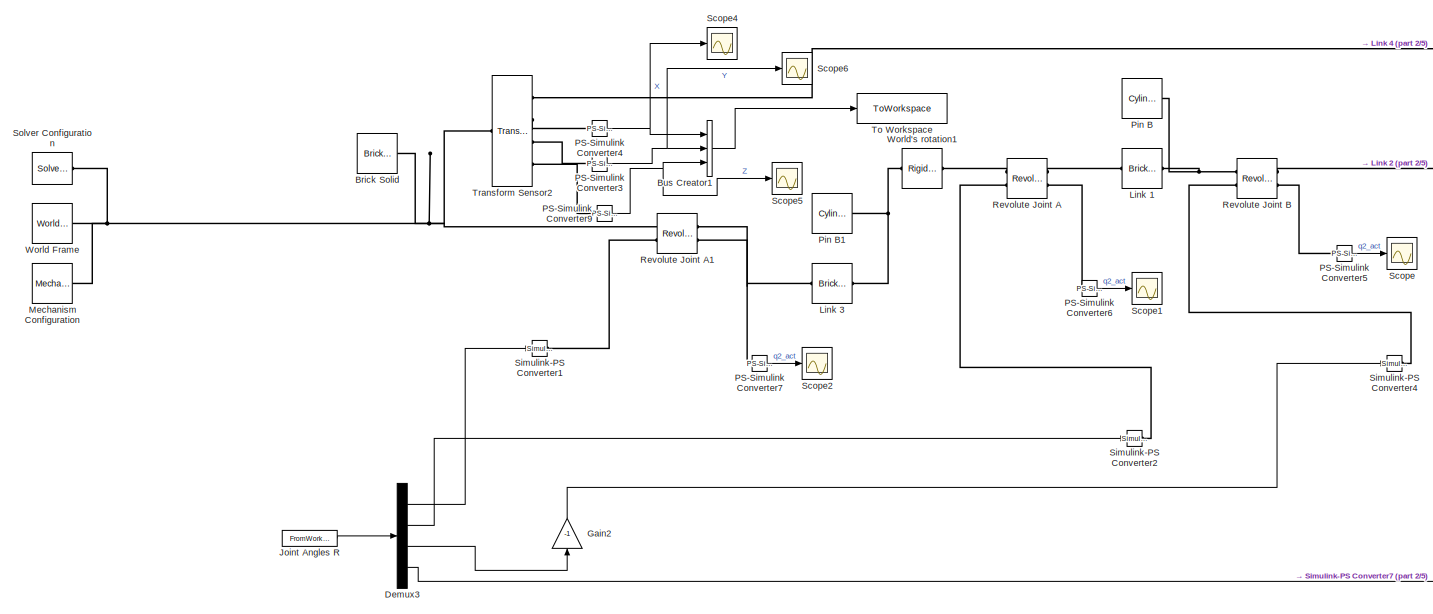
[diagram: root canvas - part 1/5, top center region]
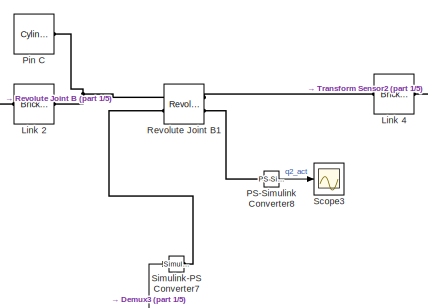
[diagram: root canvas - part 2/5, top center region]
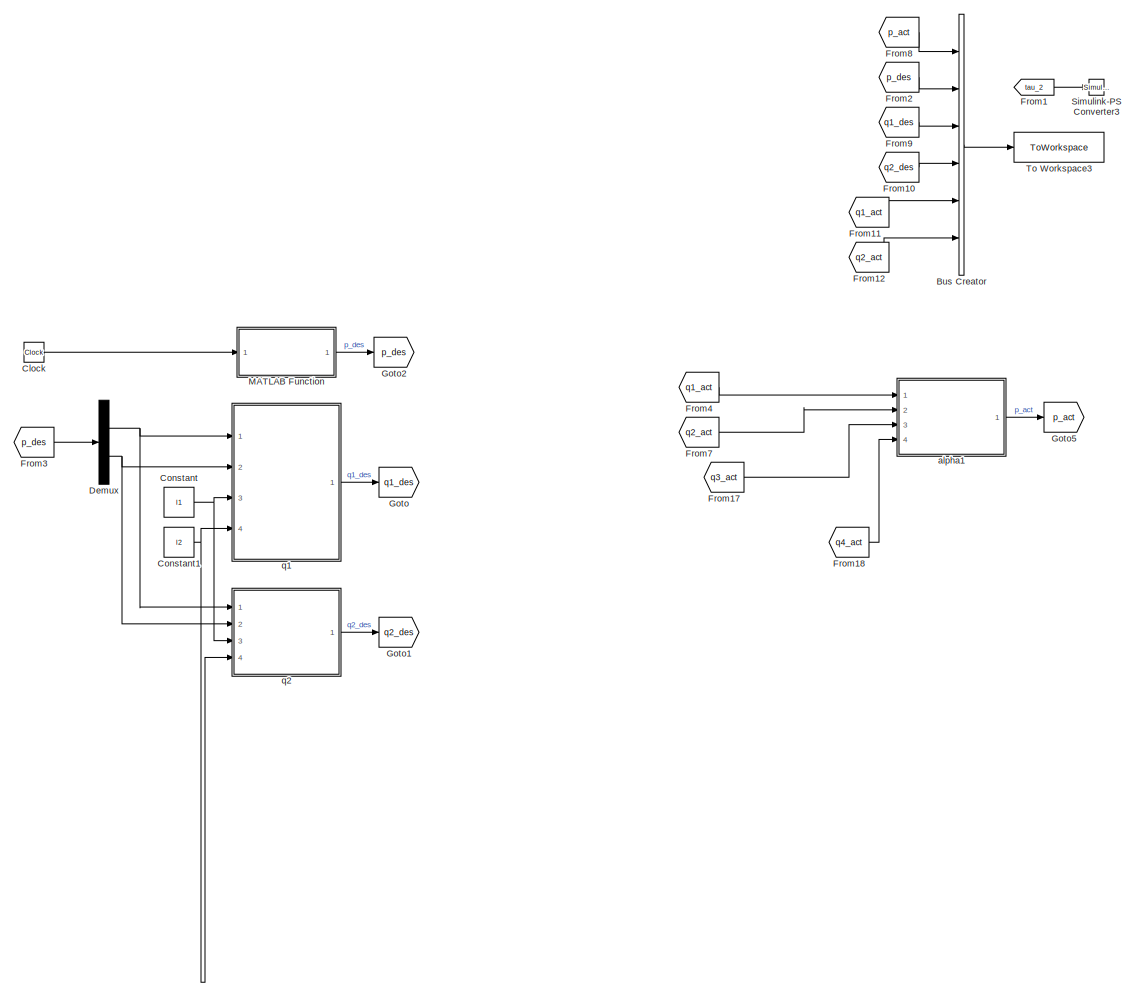
[diagram: root canvas - part 3/5, bottom left region]
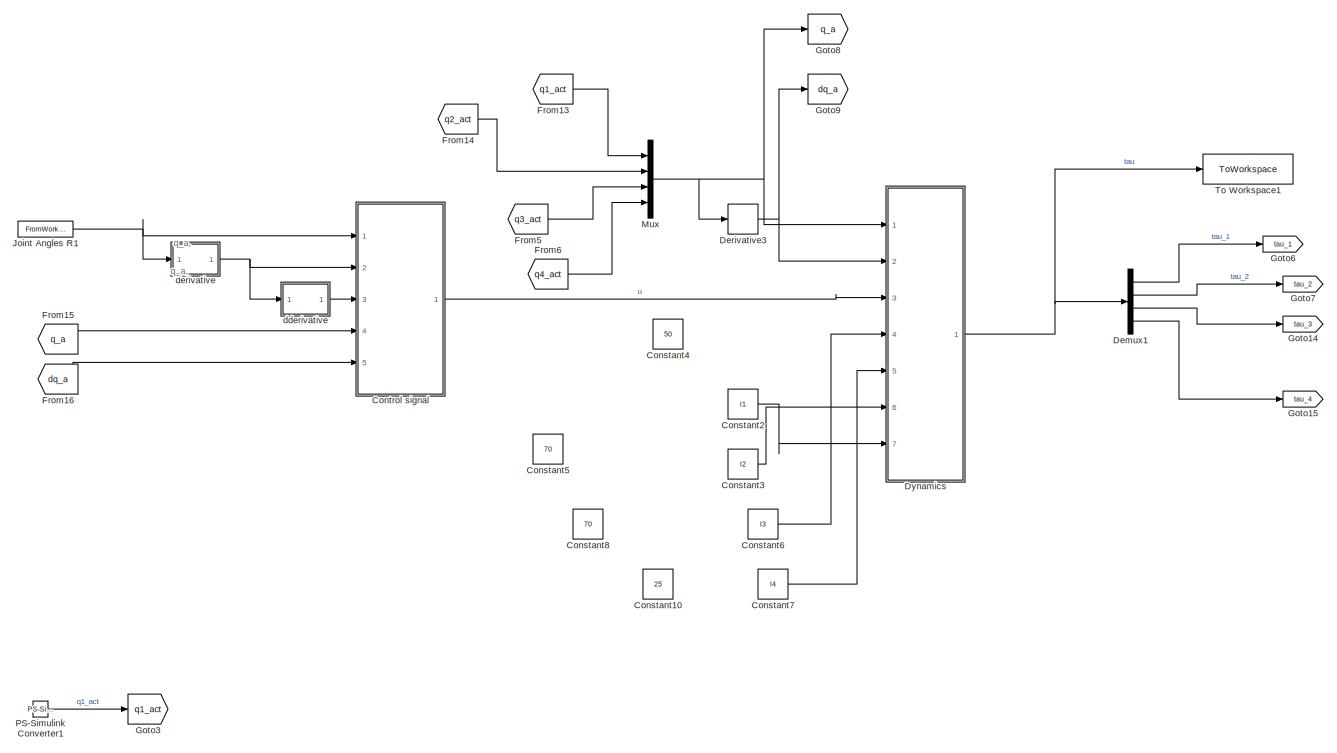
[diagram: root canvas - part 4/5, central region]
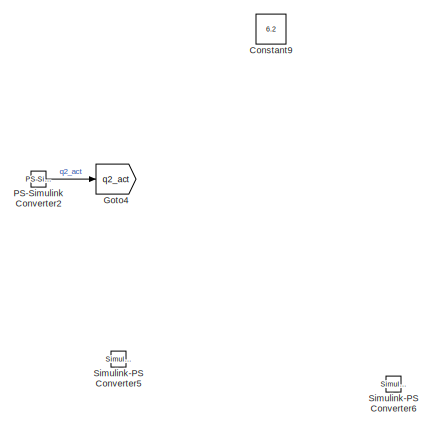
[diagram: root canvas - part 5/5, bottom right region]
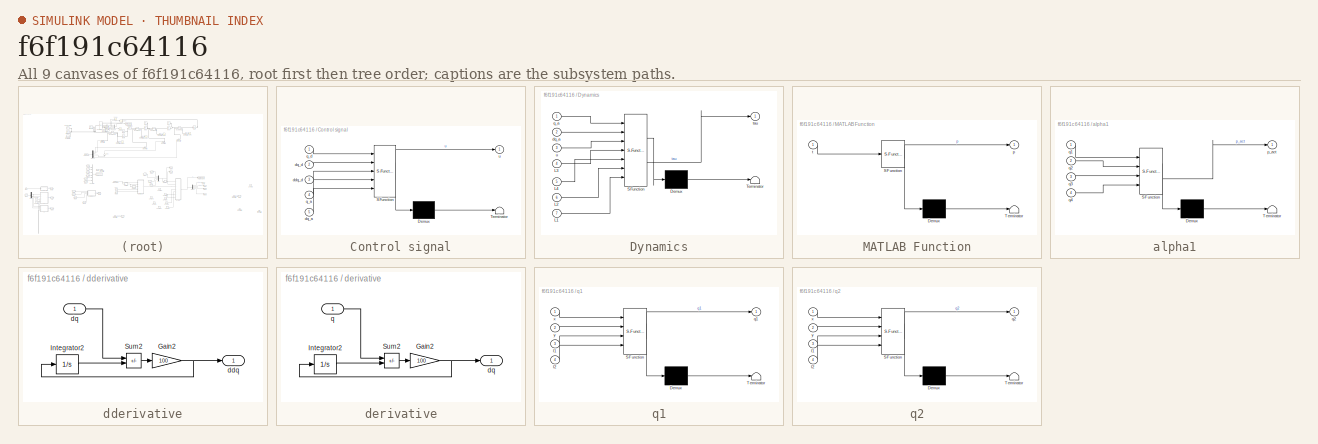
[diagram: thumbnail index - all 9 canvases of the model, root first then tree order]
MODEL slx_f6f191c64116
KIND model
CONFIG AbsTol = auto
CONFIG EnableMultiTasking = off
CONFIG FixedStep = 0.001
CONFIG MaxStep = auto
CONFIG MinStep = 0.005
CONFIG RelTol = 1e-3
CONFIG SampleTimeConstraint = Unconstrained
CONFIG SolverName = VariableStepAuto
CONFIG StartTime = 0.0
CONFIG StopTime = StopTime
BLOCK [Reference] Brick Solid  REF=sm_lib/Body Elements/Brick Solid
  Ports = [0, 0, 0, 0, 0, 0, 1]
  SourceBlock = sm_lib/Body Elements/Brick Solid
  SourceProductBaseCode = MS
  SourceType = Brick Solid
BLOCK [BusCreator] Bus Creator
  Commented = on
  DisplayOption = bar
  InheritFromInputs = on
  Inputs = 6
  Ports = [6, 1]
BLOCK [BusCreator] Bus Creator1
  DisplayOption = bar
  InheritFromInputs = on
  Inputs = 3
  Ports = [3, 1]
BLOCK [Clock] Clock
  Commented = on
BLOCK [Constant] Constant
  Commented = on
  Value = l1
BLOCK [Constant] Constant1
  Commented = on
  Value = l2
BLOCK [Constant] Constant10
  Commented = on
  Value = 25
BLOCK [Constant] Constant2
  Commented = on
  Value = l1
BLOCK [Constant] Constant3
  Commented = on
  Value = l2
BLOCK [Constant] Constant4
  Commented = on
  Value = 50
BLOCK [Constant] Constant5
  Commented = on
  Value = 70
BLOCK [Constant] Constant6
  Commented = on
  Value = l3
BLOCK [Constant] Constant7
  Commented = on
  Value = l4
BLOCK [Constant] Constant8
  Commented = on
  Value = 70
BLOCK [Constant] Constant9
  Commented = on
  Value = 6.2
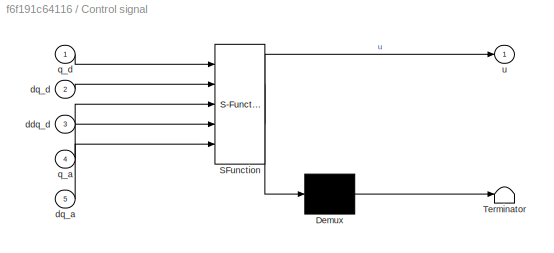
BLOCK [SubSystem] Control signal
  Commented = on
  ErrorFcn = Stateflow.Translate.translate
  PermitHierarchicalResolution = ExplicitOnly
  Ports = [5, 1]
  RequestExecContextInheritance = off
  SFBlockType = MATLAB Function
  TreatAsAtomicUnit = on
BLOCK [Demux] Control signal/ Demux 
  Outputs = 1
  Ports = [1, 1]
BLOCK [S-Function] Control signal/ SFunction 
  EnableBusSupport = on
  FunctionName = sf_sfun
  PortCounts = [5 2]
  Ports = [5, 2]
  SFcnIsStateOwnerBlock = off
  SFunctionDeploymentMode = off
  Tag = Stateflow S-Function 6
BLOCK [Terminator] Control signal/ Terminator 
BLOCK [Inport] Control signal/ddq_d
  Port = 3
BLOCK [Inport] Control signal/dq_a
  Port = 5
BLOCK [Inport] Control signal/dq_d
  Port = 2
BLOCK [Inport] Control signal/q_a
  Port = 4
BLOCK [Inport] Control signal/q_d
BLOCK [Outport] Control signal/u
  VectorParamsAs1DForOutWhenUnconnected = off
BLOCK [Demux] Demux
  Commented = on
  Outputs = 2
  Ports = [1, 2]
BLOCK [Demux] Demux1
  Commented = on
  Ports = [1, 4]
BLOCK [Demux] Demux3
  Ports = [1, 4]
BLOCK [Derivative] Derivative3
  Commented = on
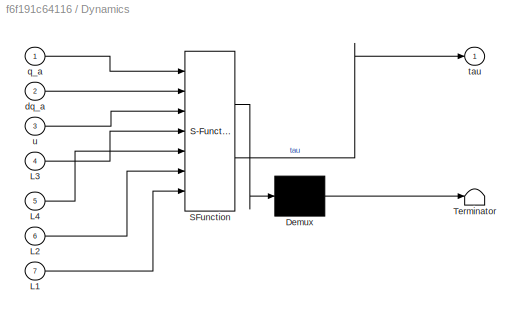
BLOCK [SubSystem] Dynamics
  Commented = on
  ErrorFcn = Stateflow.Translate.translate
  PermitHierarchicalResolution = ExplicitOnly
  Ports = [7, 1]
  RequestExecContextInheritance = off
  SFBlockType = MATLAB Function
  TreatAsAtomicUnit = on
BLOCK [Demux] Dynamics/ Demux 
  Outputs = 1
  Ports = [1, 1]
BLOCK [S-Function] Dynamics/ SFunction 
  EnableBusSupport = on
  FunctionName = sf_sfun
  Parameters = m1,m2,m3,m4
  PortCounts = [7 2]
  Ports = [7, 2]
  SFcnIsStateOwnerBlock = off
  SFunctionDeploymentMode = off
  Tag = Stateflow S-Function 5
BLOCK [Terminator] Dynamics/ Terminator 
BLOCK [Inport] Dynamics/L1
  Port = 7
BLOCK [Inport] Dynamics/L2
  Port = 6
BLOCK [Inport] Dynamics/L3
  Port = 4
BLOCK [Inport] Dynamics/L4
  Port = 5
BLOCK [Inport] Dynamics/dq_a
  Port = 2
BLOCK [Inport] Dynamics/q_a
BLOCK [Outport] Dynamics/tau
  VectorParamsAs1DForOutWhenUnconnected = off
BLOCK [Inport] Dynamics/u
  Port = 3
BLOCK [From] From1
  Commented = on
  GotoTag = tau_2
BLOCK [From] From10
  Commented = on
  GotoTag = q2_des
BLOCK [From] From11
  Commented = on
  GotoTag = q1_act
BLOCK [From] From12
  Commented = on
  GotoTag = q2_act
BLOCK [From] From13
  Commented = on
  GotoTag = q1_act
BLOCK [From] From14
  Commented = on
  GotoTag = q2_act
BLOCK [From] From15
  Commented = on
  GotoTag = q_a
BLOCK [From] From16
  Commented = on
  GotoTag = dq_a
BLOCK [From] From17
  Commented = on
  GotoTag = q3_act
BLOCK [From] From18
  Commented = on
  GotoTag = q4_act
BLOCK [From] From2
  Commented = on
  GotoTag = p_des
BLOCK [From] From3
  Commented = on
  GotoTag = p_des
BLOCK [From] From4
  Commented = on
  GotoTag = q1_act
BLOCK [From] From5
  Commented = on
  GotoTag = q3_act
BLOCK [From] From6
  Commented = on
  GotoTag = q4_act
BLOCK [From] From7
  Commented = on
  GotoTag = q2_act
BLOCK [From] From8
  Commented = on
  GotoTag = p_act
BLOCK [From] From9
  Commented = on
  GotoTag = q1_des
BLOCK [Gain] Gain2
  Gain = -1
  NameLocation = right
BLOCK [Goto] Goto
  Commented = on
  GotoTag = q1_des
BLOCK [Goto] Goto1
  Commented = on
  GotoTag = q2_des
BLOCK [Goto] Goto14
  Commented = on
  GotoTag = tau_3
BLOCK [Goto] Goto15
  Commented = on
  GotoTag = tau_4
BLOCK [Goto] Goto2
  Commented = on
  GotoTag = p_des
BLOCK [Goto] Goto3
  Commented = on
  GotoTag = q1_act
BLOCK [Goto] Goto4
  Commented = on
  GotoTag = q2_act
BLOCK [Goto] Goto5
  Commented = on
  GotoTag = p_act
BLOCK [Goto] Goto6
  Commented = on
  GotoTag = tau_1
BLOCK [Goto] Goto7
  Commented = on
  GotoTag = tau_2
BLOCK [Goto] Goto8
  Commented = on
  GotoTag = q_a
BLOCK [Goto] Goto9
  Commented = on
  GotoTag = dq_a
BLOCK [FromWorkspace] Joint Angles R
  OutputAfterFinalValue = Holding final value
  VariableName = thetas_right_niz
BLOCK [FromWorkspace] Joint Angles R1
  Commented = on
  OutputAfterFinalValue = Holding final value
  VariableName = theta_shag
BLOCK [Reference] Link 1  REF=sm_lib/Body Elements/Brick Solid
  Ports = [0, 0, 0, 0, 0, 1, 1]
  SourceBlock = sm_lib/Body Elements/Brick Solid
  SourceProductBaseCode = MS
  SourceType = Brick Solid
BLOCK [Reference] Link 2  REF=sm_lib/Body Elements/Brick Solid
  Ports = [0, 0, 0, 0, 0, 1, 1]
  SourceBlock = sm_lib/Body Elements/Brick Solid
  SourceProductBaseCode = MS
  SourceType = Brick Solid
BLOCK [Reference] Link 3  REF=sm_lib/Body Elements/Brick Solid
  Ports = [0, 0, 0, 0, 0, 1, 1]
  SourceBlock = sm_lib/Body Elements/Brick Solid
  SourceProductBaseCode = MS
  SourceType = Brick Solid
BLOCK [Reference] Link 4  REF=sm_lib/Body Elements/Brick Solid
  Ports = [0, 0, 0, 0, 0, 1, 1]
  SourceBlock = sm_lib/Body Elements/Brick Solid
  SourceProductBaseCode = MS
  SourceType = Brick Solid
BLOCK [SubSystem] MATLAB Function
  Commented = on
  ErrorFcn = Stateflow.Translate.translate
  PermitHierarchicalResolution = ExplicitOnly
  Ports = [1, 1]
  RequestExecContextInheritance = off
  SFBlockType = MATLAB Function
  TreatAsAtomicUnit = on
BLOCK [Demux] MATLAB Function/ Demux 
  Outputs = 1
  Ports = [1, 1]
BLOCK [S-Function] MATLAB Function/ SFunction 
  EnableBusSupport = on
  FunctionName = sf_sfun
  PortCounts = [1 2]
  Ports = [1, 2]
  SFcnIsStateOwnerBlock = off
  SFunctionDeploymentMode = off
  Tag = Stateflow S-Function 2
BLOCK [Terminator] MATLAB Function/ Terminator 
BLOCK [Outport] MATLAB Function/p
BLOCK [Inport] MATLAB Function/t
BLOCK [Reference] Mechanism Configuration  REF=sm_lib/Utilities/Mechanism
Configuration
  Ports = [0, 0, 0, 0, 0, 0, 1]
  SourceBlock = sm_lib/Utilities/Mechanism\nConfiguration
  SourceProductBaseCode = MS
  SourceType = Mechanism\nConfiguration
BLOCK [Mux] Mux
  Commented = on
  DisplayOption = bar
  Ports = [4, 1]
BLOCK [Reference] PS-Simulink Converter1  REF=nesl_utility/PS-Simulink
Converter
  Commented = on
  Ports = [0, 1, 0, 0, 0, 1]
  SourceBlock = nesl_utility/PS-Simulink\nConverter
  SourceProductBaseCode = SS,PW,VE
  SourceType = PS-Simulink\nConverter
BLOCK [Reference] PS-Simulink Converter2  REF=nesl_utility/PS-Simulink
Converter
  Commented = on
  Ports = [0, 1, 0, 0, 0, 1]
  SourceBlock = nesl_utility/PS-Simulink\nConverter
  SourceProductBaseCode = SS,PW,VE
  SourceType = PS-Simulink\nConverter
BLOCK [Reference] PS-Simulink Converter3  REF=nesl_utility/PS-Simulink
Converter
  Ports = [0, 1, 0, 0, 0, 1]
  SourceBlock = nesl_utility/PS-Simulink\nConverter
  SourceProductBaseCode = SS,PW,VE
  SourceType = PS-Simulink\nConverter
BLOCK [Reference] PS-Simulink Converter4  REF=nesl_utility/PS-Simulink
Converter
  Ports = [0, 1, 0, 0, 0, 1]
  SourceBlock = nesl_utility/PS-Simulink\nConverter
  SourceProductBaseCode = SS,PW,VE
  SourceType = PS-Simulink\nConverter
BLOCK [Reference] PS-Simulink Converter5  REF=nesl_utility/PS-Simulink
Converter
  Ports = [0, 1, 0, 0, 0, 1]
  SourceBlock = nesl_utility/PS-Simulink\nConverter
  SourceProductBaseCode = SS,PW,VE
  SourceType = PS-Simulink\nConverter
BLOCK [Reference] PS-Simulink Converter6  REF=nesl_utility/PS-Simulink
Converter
  Ports = [0, 1, 0, 0, 0, 1]
  SourceBlock = nesl_utility/PS-Simulink\nConverter
  SourceProductBaseCode = SS,PW,VE
  SourceType = PS-Simulink\nConverter
BLOCK [Reference] PS-Simulink Converter7  REF=nesl_utility/PS-Simulink
Converter
  Ports = [0, 1, 0, 0, 0, 1]
  SourceBlock = nesl_utility/PS-Simulink\nConverter
  SourceProductBaseCode = SS,PW,VE
  SourceType = PS-Simulink\nConverter
BLOCK [Reference] PS-Simulink Converter8  REF=nesl_utility/PS-Simulink
Converter
  Ports = [0, 1, 0, 0, 0, 1]
  SourceBlock = nesl_utility/PS-Simulink\nConverter
  SourceProductBaseCode = SS,PW,VE
  SourceType = PS-Simulink\nConverter
BLOCK [Reference] PS-Simulink Converter9  REF=nesl_utility/PS-Simulink
Converter
  Ports = [0, 1, 0, 0, 0, 1]
  SourceBlock = nesl_utility/PS-Simulink\nConverter
  SourceProductBaseCode = SS,PW,VE
  SourceType = PS-Simulink\nConverter
BLOCK [Reference] Pin B  REF=sm_lib/Body Elements/Cylindrical Solid
  Ports = [0, 0, 0, 0, 0, 0, 1]
  SourceBlock = sm_lib/Body Elements/Cylindrical Solid
  SourceProductBaseCode = MS
  SourceType = Cylindrical Solid
BLOCK [Reference] Pin B1  REF=sm_lib/Body Elements/Cylindrical Solid
  Ports = [0, 0, 0, 0, 0, 0, 1]
  SourceBlock = sm_lib/Body Elements/Cylindrical Solid
  SourceProductBaseCode = MS
  SourceType = Cylindrical Solid
BLOCK [Reference] Pin C  REF=sm_lib/Body Elements/Cylindrical Solid
  Ports = [0, 0, 0, 0, 0, 0, 1]
  SourceBlock = sm_lib/Body Elements/Cylindrical Solid
  SourceProductBaseCode = MS
  SourceType = Cylindrical Solid
BLOCK [Reference] Revolute Joint A  REF=sm_lib/Joints/Revolute Joint
  Ports = [0, 0, 0, 0, 0, 2, 2]
  SourceBlock = sm_lib/Joints/Revolute Joint
  SourceProductBaseCode = MS
  SourceType = Revolute Joint
BLOCK [Reference] Revolute Joint A1  REF=sm_lib/Joints/Revolute Joint
  Ports = [0, 0, 0, 0, 0, 2, 2]
  SourceBlock = sm_lib/Joints/Revolute Joint
  SourceProductBaseCode = MS
  SourceType = Revolute Joint
BLOCK [Reference] Revolute Joint B  REF=sm_lib/Joints/Revolute Joint
  Ports = [0, 0, 0, 0, 0, 2, 2]
  SourceBlock = sm_lib/Joints/Revolute Joint
  SourceProductBaseCode = MS
  SourceType = Revolute Joint
BLOCK [Reference] Revolute Joint B1  REF=sm_lib/Joints/Revolute Joint
  Ports = [0, 0, 0, 0, 0, 2, 2]
  SourceBlock = sm_lib/Joints/Revolute Joint
  SourceProductBaseCode = MS
  SourceType = Revolute Joint
BLOCK [Scope] Scope
  Floating = off
  NumInputPorts = 1
  Ports = [1]
  ScopeSpecificationString = Simulink.scopes.TimeScopeBlockCfg('CurrentConfiguration', extmgr.ConfigurationSet(extmgr.Configuration('Core','General UI',true),extmgr.Configuration('Core','Source UI',true),extmgr.Configuration('Sources','WiredSimulink',true),extmgr.Configuration('Visuals','Time Domain',true),extmgr.Configuration('Tools','Plot Navigation',true),extmgr.Configuration('Tools','Measurements',true)),'Version','2022a'...<+1ch>
BLOCK [Scope] Scope1
  Floating = off
  NumInputPorts = 1
  Ports = [1]
  ScopeSpecificationString = Simulink.scopes.TimeScopeBlockCfg('CurrentConfiguration', extmgr.ConfigurationSet(extmgr.Configuration('Core','General UI',true),extmgr.Configuration('Core','Source UI',true),extmgr.Configuration('Sources','WiredSimulink',true,'DataLoggingVariableName','ScopeData1'),extmgr.Configuration('Visuals','Time Domain',true),extmgr.Configuration('Tools','Plot Navigation',true),extmgr.Configuration('Tools',...<+40ch>
BLOCK [Scope] Scope2
  Floating = off
  NumInputPorts = 1
  Ports = [1]
  ScopeSpecificationString = Simulink.scopes.TimeScopeBlockCfg('CurrentConfiguration', extmgr.ConfigurationSet(extmgr.Configuration('Core','General UI',true),extmgr.Configuration('Core','Source UI',true),extmgr.Configuration('Sources','WiredSimulink',true,'DataLoggingVariableName','ScopeData2'),extmgr.Configuration('Visuals','Time Domain',true,'SerializedDisplays',{struct('MinYLimReal','-1.42904','MaxYLimReal','1.03108','YLab...<+1365ch>
BLOCK [Scope] Scope3
  Floating = off
  NumInputPorts = 1
  Ports = [1]
  ScopeSpecificationString = Simulink.scopes.TimeScopeBlockCfg('CurrentConfiguration', extmgr.ConfigurationSet(extmgr.Configuration('Core','General UI',true),extmgr.Configuration('Core','Source UI',true),extmgr.Configuration('Sources','WiredSimulink',true,'DataLoggingVariableName','ScopeData1'),extmgr.Configuration('Visuals','Time Domain',true,'SerializedDisplays',{struct('MinYLimReal','5.5699','MaxYLimReal','6.21588','YLabel...<+1359ch>
BLOCK [Scope] Scope4
  Floating = off
  NumInputPorts = 1
  Ports = [1]
  ScopeSpecificationString = Simulink.scopes.TimeScopeBlockCfg('CurrentConfiguration', extmgr.ConfigurationSet(extmgr.Configuration('Core','General UI',true),extmgr.Configuration('Core','Source UI',true),extmgr.Configuration('Sources','WiredSimulink',true,'DataLoggingVariableName','x_leg','DataLogging',true,'DataLoggingSaveFormat','Array'),extmgr.Configuration('Visuals','Time Domain',true,'SerializedDisplays',{struct('MinYLim...<+1460ch>
BLOCK [Scope] Scope5
  Floating = off
  NumInputPorts = 1
  Ports = [1]
  ScopeSpecificationString = Simulink.scopes.TimeScopeBlockCfg('CurrentConfiguration', extmgr.ConfigurationSet(extmgr.Configuration('Core','General UI',true),extmgr.Configuration('Core','Source UI',true),extmgr.Configuration('Sources','WiredSimulink',true,'DataLoggingVariableName','z_leg','DataLogging',true,'DataLoggingSaveFormat','Array'),extmgr.Configuration('Visuals','Time Domain',true,'SerializedDisplays',{struct('MinYLim...<+1435ch>
BLOCK [Scope] Scope6
  Floating = off
  NumInputPorts = 1
  Ports = [1]
  ScopeSpecificationString = Simulink.scopes.TimeScopeBlockCfg('CurrentConfiguration', extmgr.ConfigurationSet(extmgr.Configuration('Core','General UI',true),extmgr.Configuration('Core','Source UI',true),extmgr.Configuration('Sources','WiredSimulink',true,'DataLoggingVariableName','y_leg','DataLogging',true,'DataLoggingSaveFormat','Array'),extmgr.Configuration('Visuals','Time Domain',true,'SerializedDisplays',{struct('MinYLim...<+1436ch>
BLOCK [Reference] Simulink-PS Converter1  REF=nesl_utility/Simulink-PS
Converter
  Ports = [1, 0, 0, 0, 0, 0, 1]
  SourceBlock = nesl_utility/Simulink-PS\nConverter
  SourceProductBaseCode = SS,PW,VE
  SourceType = Simulink-PS\nConverter
BLOCK [Reference] Simulink-PS Converter2  REF=nesl_utility/Simulink-PS
Converter
  Ports = [1, 0, 0, 0, 0, 0, 1]
  SourceBlock = nesl_utility/Simulink-PS\nConverter
  SourceProductBaseCode = SS,PW,VE
  SourceType = Simulink-PS\nConverter
BLOCK [Reference] Simulink-PS Converter3  REF=nesl_utility/Simulink-PS
Converter
  Commented = on
  Ports = [1, 0, 0, 0, 0, 0, 1]
  SourceBlock = nesl_utility/Simulink-PS\nConverter
  SourceProductBaseCode = SS,PW,VE
  SourceType = Simulink-PS\nConverter
BLOCK [Reference] Simulink-PS Converter4  REF=nesl_utility/Simulink-PS
Converter
  Ports = [1, 0, 0, 0, 0, 0, 1]
  SourceBlock = nesl_utility/Simulink-PS\nConverter
  SourceProductBaseCode = SS,PW,VE
  SourceType = Simulink-PS\nConverter
BLOCK [Reference] Simulink-PS Converter5  REF=nesl_utility/Simulink-PS
Converter
  Commented = on
  Ports = [1, 0, 0, 0, 0, 0, 1]
  SourceBlock = nesl_utility/Simulink-PS\nConverter
  SourceProductBaseCode = SS,PW,VE
  SourceType = Simulink-PS\nConverter
BLOCK [Reference] Simulink-PS Converter6  REF=nesl_utility/Simulink-PS
Converter
  Commented = on
  Ports = [1, 0, 0, 0, 0, 0, 1]
  SourceBlock = nesl_utility/Simulink-PS\nConverter
  SourceProductBaseCode = SS,PW,VE
  SourceType = Simulink-PS\nConverter
BLOCK [Reference] Simulink-PS Converter7  REF=nesl_utility/Simulink-PS
Converter
  Ports = [1, 0, 0, 0, 0, 0, 1]
  SourceBlock = nesl_utility/Simulink-PS\nConverter
  SourceProductBaseCode = SS,PW,VE
  SourceType = Simulink-PS\nConverter
BLOCK [Reference] Solver Configuration  REF=nesl_utility/Solver
Configuration
  Ports = [0, 0, 0, 0, 0, 0, 1]
  SourceBlock = nesl_utility/Solver\nConfiguration
  SourceProductBaseCode = SS,PW,VE
  SourceType = Solver\nConfiguration
BLOCK [ToWorkspace] To Workspace
  FixptAsFi = on
  MaxDataPoints = inf
  Ports = [1]
  SampleTime = -1
  SaveFormat = Timeseries
  VariableName = xyz_leg
BLOCK [ToWorkspace] To Workspace1
  Commented = on
  FixptAsFi = on
  MaxDataPoints = inf
  Ports = [1]
  SampleTime = -1
  SaveFormat = Timeseries
  VariableName = tau
BLOCK [ToWorkspace] To Workspace3
  Commented = on
  FixptAsFi = on
  MaxDataPoints = inf
  Ports = [1]
  SampleTime = -1
  SaveFormat = Timeseries
  VariableName = positon
BLOCK [Reference] Transform Sensor2  REF=sm_lib/Frames and
Transforms/Transform
Sensor
  Ports = [0, 0, 0, 0, 0, 1, 4]
  SourceBlock = sm_lib/Frames and\nTransforms/Transform\nSensor
  SourceProductBaseCode = MS
  SourceType = Transform\nSensor
BLOCK [Reference] World Frame  REF=sm_lib/Frames and
Transforms/World Frame
  Ports = [0, 0, 0, 0, 0, 0, 1]
  SourceBlock = sm_lib/Frames and\nTransforms/World Frame
  SourceProductBaseCode = MS
  SourceType = World Frame
BLOCK [Reference] World's rotation1  REF=sm_lib/Frames and
Transforms/Rigid
Transform
  Ports = [0, 0, 0, 0, 0, 1, 1]
  SourceBlock = sm_lib/Frames and\nTransforms/Rigid\nTransform
  SourceProductBaseCode = MS
  SourceType = Rigid\nTransform
BLOCK [SubSystem] alpha1
  Commented = on
  ErrorFcn = Stateflow.Translate.translate
  PermitHierarchicalResolution = ExplicitOnly
  Ports = [4, 1]
  RequestExecContextInheritance = off
  SFBlockType = MATLAB Function
  TreatAsAtomicUnit = on
BLOCK [Demux] alpha1/ Demux 
  Outputs = 1
  Ports = [1, 1]
BLOCK [S-Function] alpha1/ SFunction 
  EnableBusSupport = on
  FunctionName = sf_sfun
  Parameters = L1,L2,L3,L4
  PortCounts = [4 2]
  Ports = [4, 2]
  SFcnIsStateOwnerBlock = off
  SFunctionDeploymentMode = off
  Tag = Stateflow S-Function 4
BLOCK [Terminator] alpha1/ Terminator 
BLOCK [Outport] alpha1/p_act
BLOCK [Inport] alpha1/q1
BLOCK [Inport] alpha1/q2
  Port = 2
BLOCK [Inport] alpha1/q3
  Port = 3
BLOCK [Inport] alpha1/q4
  Port = 4
BLOCK [SubSystem] dderivative
  Commented = on
  Ports = [1, 1]
  RequestExecContextInheritance = off
BLOCK [Gain] dderivative/Gain2
  Gain = 100
BLOCK [Integrator] dderivative/Integrator2
  Ports = [1, 1]
BLOCK [Sum] dderivative/Sum2
  IconShape = rectangular
  Inputs = +-
  Ports = [2, 1]
BLOCK [Outport] dderivative/ddq
BLOCK [Inport] dderivative/dq
BLOCK [SubSystem] derivative
  Commented = on
  Ports = [1, 1]
  RequestExecContextInheritance = off
BLOCK [Gain] derivative/Gain2
  Gain = 100
BLOCK [Integrator] derivative/Integrator2
  Ports = [1, 1]
BLOCK [Sum] derivative/Sum2
  IconShape = rectangular
  Inputs = +-
  Ports = [2, 1]
BLOCK [Outport] derivative/dq
BLOCK [Inport] derivative/q
BLOCK [SubSystem] q1
  Commented = on
  ErrorFcn = Stateflow.Translate.translate
  PermitHierarchicalResolution = ExplicitOnly
  Ports = [4, 1]
  RequestExecContextInheritance = off
  SFBlockType = MATLAB Function
  TreatAsAtomicUnit = on
BLOCK [Demux] q1/ Demux 
  Outputs = 1
  Ports = [1, 1]
BLOCK [S-Function] q1/ SFunction 
  EnableBusSupport = on
  FunctionName = sf_sfun
  PortCounts = [4 2]
  Ports = [4, 2]
  SFcnIsStateOwnerBlock = off
  SFunctionDeploymentMode = off
  Tag = Stateflow S-Function 3
BLOCK [Terminator] q1/ Terminator 
BLOCK [Inport] q1/l1
  Port = 3
BLOCK [Inport] q1/l2
  Port = 4
BLOCK [Outport] q1/q1
BLOCK [Inport] q1/x
BLOCK [Inport] q1/y
  Port = 2
BLOCK [SubSystem] q2
  Commented = on
  ErrorFcn = Stateflow.Translate.translate
  PermitHierarchicalResolution = ExplicitOnly
  Ports = [4, 1]
  RequestExecContextInheritance = off
  SFBlockType = MATLAB Function
  TreatAsAtomicUnit = on
BLOCK [Demux] q2/ Demux 
  Outputs = 1
  Ports = [1, 1]
BLOCK [S-Function] q2/ SFunction 
  EnableBusSupport = on
  FunctionName = sf_sfun
  PortCounts = [4 2]
  Ports = [4, 2]
  SFcnIsStateOwnerBlock = off
  SFunctionDeploymentMode = off
  Tag = Stateflow S-Function 1
BLOCK [Terminator] q2/ Terminator 
BLOCK [Inport] q2/l1
  Port = 3
BLOCK [Inport] q2/l2
  Port = 4
BLOCK [Outport] q2/q2
BLOCK [Inport] q2/x
BLOCK [Inport] q2/y
  Port = 2
ANNOTATION (root): q_a,
LINE Bus Creator1:1 -> To Workspace:1
LINE Bus Creator:1 -> To Workspace3:1
LINE Clock:1 -> MATLAB Function:1
NET Constant1:1 -> q1:4, q2:4
LINE Constant2:1 -> Dynamics:7
LINE Constant3:1 -> Dynamics:6
LINE Constant6:1 -> Dynamics:4
LINE Constant7:1 -> Dynamics:5
NET Constant:1 -> q1:3, q2:3
LINE Control signal:1 -> Dynamics:3
LINE Demux1:1 -> Goto6:1
LINE Demux1:2 -> Goto7:1
LINE Demux1:3 -> Goto14:1
LINE Demux1:4 -> Goto15:1
LINE Demux3:1 -> Simulink-PS Converter1:1
LINE Demux3:2 -> Simulink-PS Converter2:1
LINE Demux3:3 -> Gain2:1
LINE Demux3:4 -> Simulink-PS Converter7:1
NET Demux:1 -> q1:1, q2:1
NET Demux:2 -> q1:2, q2:2
NET Derivative3:1 -> Dynamics:2, Goto9:1
NET Dynamics:1 -> Demux1:1, To Workspace1:1
LINE From10:1 -> Bus Creator:4
LINE From11:1 -> Bus Creator:5
LINE From12:1 -> Bus Creator:6
LINE From13:1 -> Mux:1
LINE From14:1 -> Mux:2
LINE From15:1 -> Control signal:4
LINE From16:1 -> Control signal:5
LINE From17:1 -> alpha1:3
LINE From18:1 -> alpha1:4
LINE From1:1 -> Simulink-PS Converter3:1
LINE From2:1 -> Bus Creator:2
LINE From3:1 -> Demux:1
LINE From4:1 -> alpha1:1
LINE From5:1 -> Mux:3
LINE From6:1 -> Mux:4
LINE From7:1 -> alpha1:2
LINE From8:1 -> Bus Creator:1
LINE From9:1 -> Bus Creator:3
LINE Gain2:1 -> Simulink-PS Converter4:1
NET Joint Angles R1:1 -> Control signal:1, derivative:1
LINE Joint Angles R:1 -> Demux3:1
LINE MATLAB Function:1 -> Goto2:1
NET Mux:1 -> Derivative3:1, Dynamics:1, Goto8:1
LINE PS-Simulink Converter1:1 -> Goto3:1
LINE PS-Simulink Converter2:1 -> Goto4:1
NET PS-Simulink Converter3:1 -> Bus Creator1:2, Scope6:1
NET PS-Simulink Converter4:1 -> Bus Creator1:1, Scope4:1
LINE PS-Simulink Converter5:1 -> Scope:1
LINE PS-Simulink Converter6:1 -> Scope1:1
LINE PS-Simulink Converter7:1 -> Scope2:1
LINE PS-Simulink Converter8:1 -> Scope3:1
NET PS-Simulink Converter9:1 -> Bus Creator1:3, Scope5:1
LINE alpha1:1 -> Goto5:1
NET dderivative/Gain2:1 -> dderivative/Integrator2:1, dderivative/ddq:1
LINE dderivative/Integrator2:1 -> dderivative/Sum2:2
LINE dderivative/Sum2:1 -> dderivative/Gain2:1
LINE dderivative/dq:1 -> dderivative/Sum2:1
LINE dderivative:1 -> Control signal:3
NET derivative/Gain2:1 -> derivative/Integrator2:1, derivative/dq:1
LINE derivative/Integrator2:1 -> derivative/Sum2:2
LINE derivative/Sum2:1 -> derivative/Gain2:1
LINE derivative/q:1 -> derivative/Sum2:1
NET derivative:1 -> Control signal:2, dderivative:1
LINE q1:1 -> Goto:1
LINE q2:1 -> Goto1:1
PNET net1: Brick Solid:RConn1 -- Mechanism Configuration:RConn1 -- Revolute Joint A1:LConn1 -- Solver Configuration:RConn1 -- Transform Sensor2:LConn1 -- World Frame:RConn1
PLINE Link 1:LConn1 -- Revolute Joint A:RConn1
PNET net2: Link 1:RConn1 -- Pin B:RConn1 -- Revolute Joint B:LConn1
PLINE Link 2:LConn1 -- Revolute Joint B:RConn1
PNET net3: Link 2:RConn1 -- Pin C:RConn1 -- Revolute Joint B1:LConn1
PLINE Link 3:LConn1 -- Revolute Joint A1:RConn1
PNET net4: Link 3:RConn1 -- Pin B1:RConn1 -- World's rotation1:LConn1
PLINE Link 4:LConn1 -- Revolute Joint B1:RConn1
PLINE Link 4:RConn1 -- Transform Sensor2:RConn1
PLINE PS-Simulink Converter3:LConn1 -- Transform Sensor2:RConn3
PLINE PS-Simulink Converter4:LConn1 -- Transform Sensor2:RConn2
PLINE PS-Simulink Converter5:LConn1 -- Revolute Joint B:RConn2
PLINE PS-Simulink Converter6:LConn1 -- Revolute Joint A:RConn2
PLINE PS-Simulink Converter7:LConn1 -- Revolute Joint A1:RConn2
PLINE PS-Simulink Converter8:LConn1 -- Revolute Joint B1:RConn2
PLINE PS-Simulink Converter9:LConn1 -- Transform Sensor2:RConn4
PLINE Revolute Joint A1:LConn2 -- Simulink-PS Converter1:RConn1
PLINE Revolute Joint A:LConn1 -- World's rotation1:RConn1
PLINE Revolute Joint A:LConn2 -- Simulink-PS Converter2:RConn1
PLINE Revolute Joint B1:LConn2 -- Simulink-PS Converter7:RConn1
PLINE Revolute Joint B:LConn2 -- Simulink-PS Converter4:RConn1
note: NET lines group one-source signal fan-out (src -> all destinations, sorted); 1:1 wires keep LINE; PNET lines group multi-terminal physical nets as a canonical sorted terminal list (undirected conserving connections); 2-terminal nets keep the pairwise PLINE form
CHART q2 states=1 transitions=1
  STATE_LABEL 'eML_blk_kernel()'
  STATE_LABEL 'SCRIPT:\nfunction q2 = fcn(x,y,l1,l2)\nargument=(l1^2+l2^2-x^2-y^2)/(2*l1*l2);\nbeta = acos(argument);\nq2 = -pi + beta;\n'
CHART MATLAB Function states=1 transitions=1
  STATE_LABEL 'eML_blk_kernel()'
  STATE_LABEL 'SCRIPT:\nfunction p = fcn(t)\np = [0.4*sin(1*t)+1.6;...\n     0.2*cos(1*t)-0.7];\n'
CHART q1 states=1 transitions=1
  STATE_LABEL 'eML_blk_kernel()'
  STATE_LABEL 'SCRIPT:\nfunction q1 = fcn(x,y,l1,l2)\nargument = (x^2+y^2+l1^2-l2^2)/(2*l1*sqrt(x^2+y^2));\nalpha = acos(argument);\ngamma = atan2(y,x);\nq1 = gamma + alpha;\n'
CHART alpha1 states=1 transitions=1
  STATE_LABEL 'eML_blk_kernel()'
  STATE_LABEL 'SCRIPT:\nfunction p_act = fcn(q1,q2,q3,q4,L1, L2, L3, L4)\np_act = my_pr(q1,q2,q3,q4,L1,L2,L3,L4);\n\n'
CHART Dynamics states=1 transitions=1
  STATE_LABEL 'eML_blk_kernel()'
  STATE_LABEL 'SCRIPT:\nfunction tau = fcn(q_a,dq_a,u,m3,L3,L4, m2, m1, L2, L1, m4)\nq10 = [1 0 0 0]*q_a;\nq20 = [0 1 0 0]*q_a;\nq30 = [0 0 1 0]*q_a;\nq40 = [0 0 0 1]*q_a;\n\nw1 = [1 0 0 0]*dq_a;\nw2 = [0 1 0 0]*dq_a;\nw3 = [0 0 1 0]*dq_a;\nw4 = [0 0 0 1]*dq_a;\n\n% g=9.80665;%gravitation\n% \n% M=[0.25*m1*l1^2+m2*(l1^2+l1*l2*cos(q2)+0.25*l2^2) m2*(0.5*l1*l2*cos(q2)+0.25*l2^2);...\n%     m2*(0.5*l1*l2*cos(q2)+0.25*l2^2) 0.25*m...<+3608ch>'
CHART Control signal states=1 transitions=1
  STATE_LABEL 'eML_blk_kernel()'
  STATE_LABEL 'SCRIPT:\nfunction u = fcn(q_d,dq_d,ddq_d, q_a,dq_a)\nKv=10;\nKp=15;\nu = ddq_d + Kv*(dq_d-dq_a) + Kp*(q_d-q_a);'
CHART  states=0 transitions=0
CHART  states=0 transitions=0
CHART  states=0 transitions=0
CHART  states=0 transitions=0
CHART  states=0 transitions=0
CHART  states=0 transitions=0
